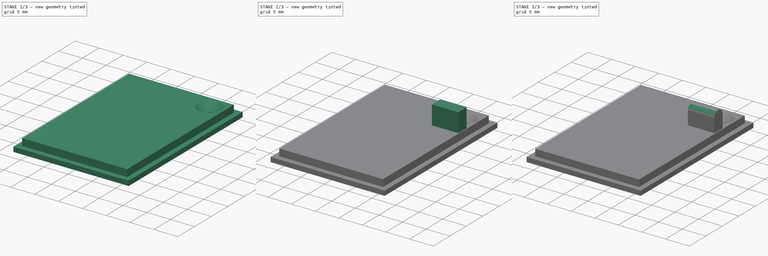
[diagram: build sequence overview — one tinted view per stage of 3, left to right]
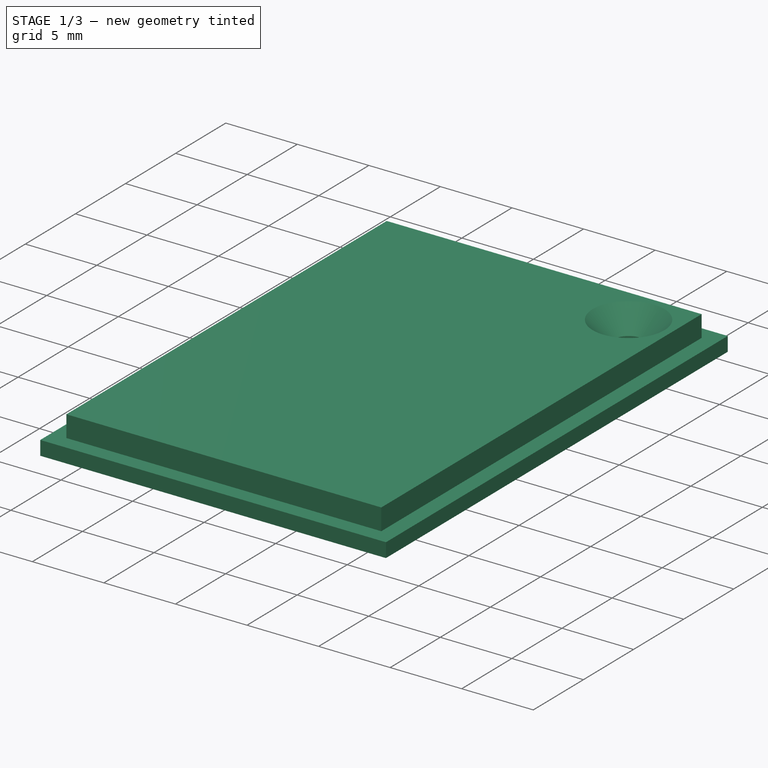
[diagram: stage 1 of 3 — iso view after this stage's code; geometry added in this stage tinted green]
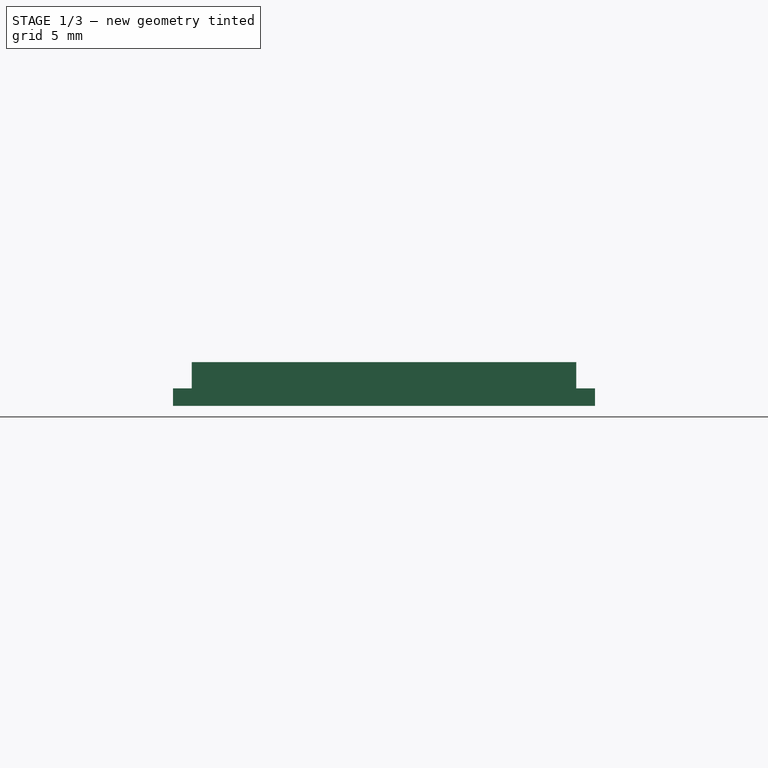
[diagram: stage 1 of 3 — front view after this stage's code; geometry added in this stage tinted green]
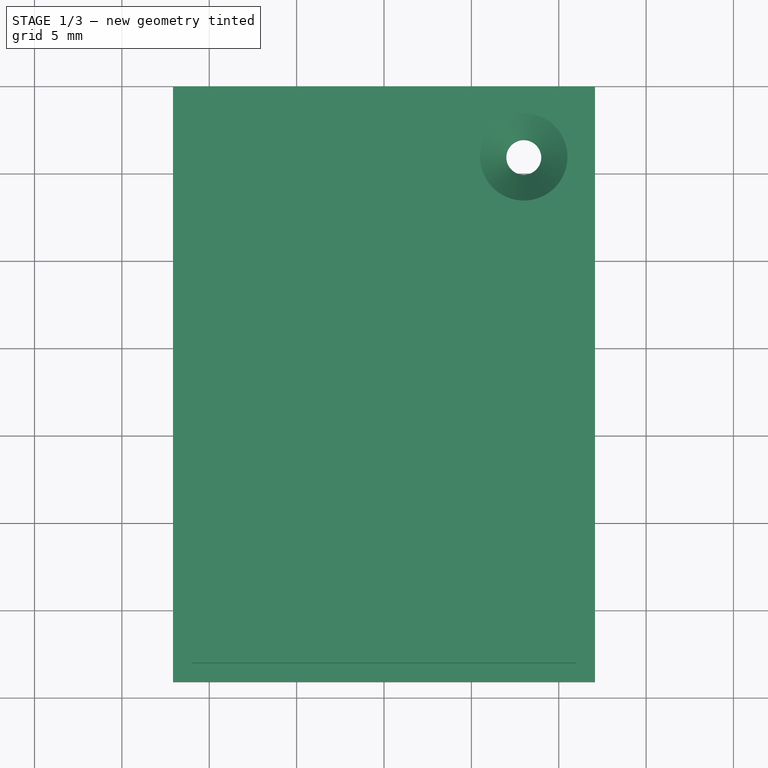
[diagram: stage 1 of 3 — top view after this stage's code; geometry added in this stage tinted green]
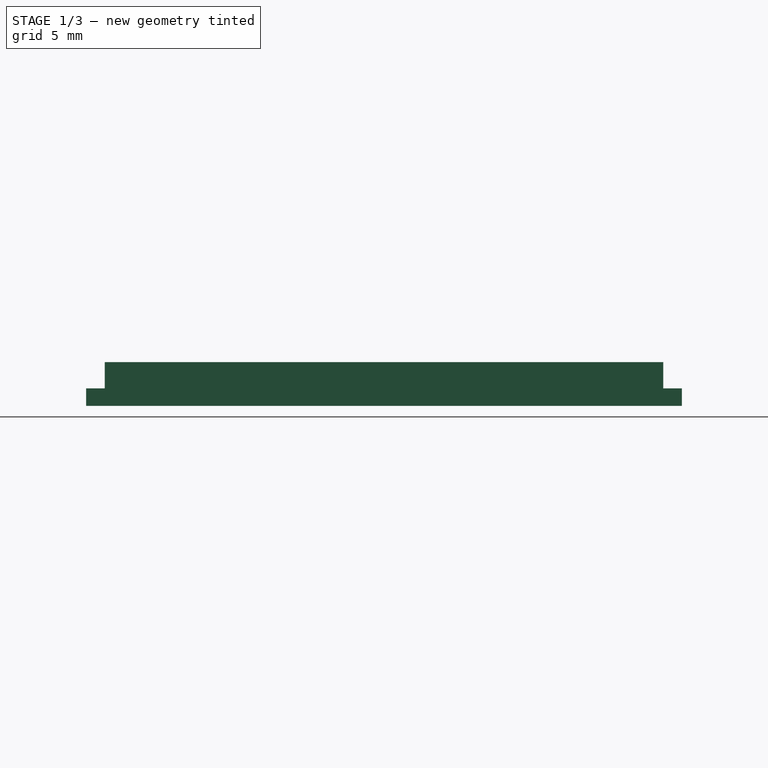
[diagram: stage 1 of 3 — right view after this stage's code; geometry added in this stage tinted green]
FCSTD DOCUMENT  (FreeCAD 0.18R16117 (Git))
Label: Couvercle switch etagere
License: All rights reserved
LicenseURL: http://en.wikipedia.org/wiki/All_rights_reserved
objects: Sketcher::SketchObject×4, PartDesign::Fillet×4, PartDesign::Pad×2, PartDesign::Pocket×1, PartDesign::Hole×1, PartDesign::Body×1
note: 17 computed .brp shape members not serialized (recipe doc carries the construction recipe); baked Part::Feature solids carry a one-line shape summary decoded from their .brp

FEATURE [Sketcher::SketchObject] Sketch
  MapMode = 5
  Placement = pos=(0,0,0) rot=(1,0,0;1.5708rad)
  Support = -> [XZ_Plane]
  sketch-geometry (8):
    g0: LineSegment StartX=-12.075 StartY=0 StartZ=0 EndX=12.075 EndY=0 EndZ=0
    g1: LineSegment StartX=12.075 StartY=0 StartZ=0 EndX=12.075 EndY=1 EndZ=0
    g2: LineSegment StartX=12.075 StartY=1 StartZ=0 EndX=11 EndY=1 EndZ=0
    g3: LineSegment StartX=11 StartY=1 StartZ=0 EndX=11 EndY=2.5 EndZ=0
    g4: LineSegment StartX=11 StartY=2.5 StartZ=0 EndX=-11 EndY=2.5 EndZ=0
    g5: LineSegment StartX=-11 StartY=2.5 StartZ=0 EndX=-11 EndY=1 EndZ=0
    g6: LineSegment StartX=-11 StartY=1 StartZ=0 EndX=-12.075 EndY=1 EndZ=0
    g7: LineSegment StartX=-12.075 StartY=1 StartZ=0 EndX=-12.075 EndY=0 EndZ=0
  constraints (24):
    c: Coincident(g0,g1)
    c: Coincident(g1,g2)
    c: Coincident(g2,g3)
    c: Coincident(g3,g4)
    c: Coincident(g4,g5)
    c: Coincident(g5,g6)
    c: Coincident(g6,g7)
    c: Coincident(g7,g0)
    c: Horizontal(g0)
    c: Horizontal(g4)
    c: Vertical(g5)
    c: Vertical(g3)
    c: Vertical(g7)
    c: Vertical(g1)
    c: Horizontal(g6)
    c: Horizontal(g2)
    c: DistanceX(g4,g4) = 22
    c: DistanceX(g0,g0) = 24.15
    c: Equal(g6,g2)
    c: DistanceY(g1,g1) = 1
    c: Horizontal(g5,g2)
    c: DistanceY(g5,g5) = 1.5
    c: DistanceX(g0,g-1) = 12.075
    c: PointOnObject(g0,g-1)
FEATURE [PartDesign::Pad] Pad
  Length = 34.1
  Length2 = 100
  Placement = pos=(0,0,0) rot=(1,0,0;1.5708rad)
  Profile = -> Sketch
  Type = 0
FEATURE [Sketcher::SketchObject] Sketch001
  ExternalGeometry = -> [Pad]
  MapMode = 5
  Placement = pos=(0,1.7e-15,2.5) rot=(0,0,1;3.14159rad)
  Support = -> [Pad]
  sketch-geometry (8):
    g0: LineSegment StartX=-11 StartY=33.03 StartZ=0 EndX=11 EndY=33.03 EndZ=0
    g1: LineSegment StartX=11 StartY=33.03 StartZ=0 EndX=11 EndY=34.1 EndZ=0
    g2: LineSegment StartX=11 StartY=34.1 StartZ=0 EndX=-11 EndY=34.1 EndZ=0
    g3: LineSegment StartX=-11 StartY=34.1 StartZ=0 EndX=-11 EndY=33.03 EndZ=0
    g4: LineSegment StartX=-11 StartY=0 StartZ=0 EndX=11 EndY=0 EndZ=0
    g5: LineSegment StartX=11 StartY=0 StartZ=0 EndX=11 EndY=1.07 EndZ=0
    g6: LineSegment StartX=11 StartY=1.07 StartZ=0 EndX=-11 EndY=1.07 EndZ=0
    g7: LineSegment StartX=-11 StartY=1.07 StartZ=0 EndX=-11 EndY=0 EndZ=0
  constraints (20):
    c: Coincident(g0,g1)
    c: Coincident(g1,g2)
    c: Coincident(g2,g3)
    c: Coincident(g3,g0)
    c: Horizontal(g0)
    c: Vertical(g1)
    c: Vertical(g3)
    c: Coincident(g4,g5)
    c: Coincident(g5,g6)
    c: Coincident(g6,g7)
    c: Coincident(g7,g4)
    c: Horizontal(g6)
    c: Vertical(g5)
    c: Vertical(g7)
    c: Coincident(g2,g-5)
    c: Coincident(g1,g-4)
    c: Coincident(g4,g-3)
    c: Coincident(g4,g-5)
    c: DistanceY(g7,g7) = 1.07
    c: Equal(g1,g5)
FEATURE [PartDesign::Pocket] Pocket
  BaseFeature = -> Pad
  Length = 1.5
  Length2 = 100
  Placement = pos=(0,0,0) rot=(1,0,0;1.5708rad)
  Profile = -> Sketch001
  Type = 0
FEATURE [Sketcher::SketchObject] Sketch002
  ExternalGeometry = -> [Pocket]
  MapMode = 5
  Placement = pos=(0,2.8e-15,2.5) rot=(0,0,1;3.14159rad)
  Support = -> [Pocket]
  sketch-geometry (1):
    g0: Circle CenterX=-8 CenterY=4.07 CenterZ=0 NormalX=0 NormalY=0 NormalZ=1 AngleXU=0 Radius=0.7
  constraints (3):
    c: Radius(g0) = 0.7
    c: DistanceY(g-4,g0) = 3
    c: DistanceX(g-4,g0) = 3
FEATURE [PartDesign::Hole] Hole
  BaseFeature = -> Pocket
  Depth = 25
  DepthType = 0
  Diameter = 2
  DrillPoint = 1
  DrillPointAngle = 118
  HoleCutCountersinkAngle = 90
  HoleCutDepth = 0
  HoleCutDiameter = 5
  HoleCutType = 2
  ModelActualThread = false
  Placement = pos=(0,0,0) rot=(1,0,0;1.5708rad)
  Profile = -> Sketch002
  Tapered = false
  TaperedAngle = 96
  ThreadAngle = 0
  ThreadClass = 0
  ThreadCutOffInner = 0
  ThreadCutOffOuter = 0
  ThreadDirection = 0
  ThreadFit = 0
  ThreadPitch = 0
  ThreadSize = 0
  ThreadType = 0
  Threaded = false
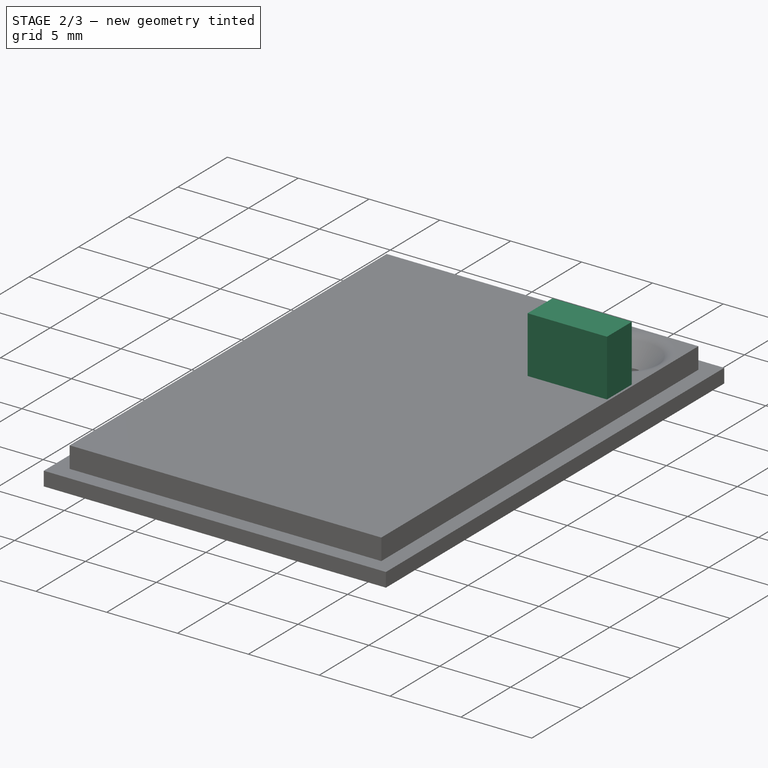
[diagram: stage 2 of 3 — iso view after this stage's code; geometry added in this stage tinted green]
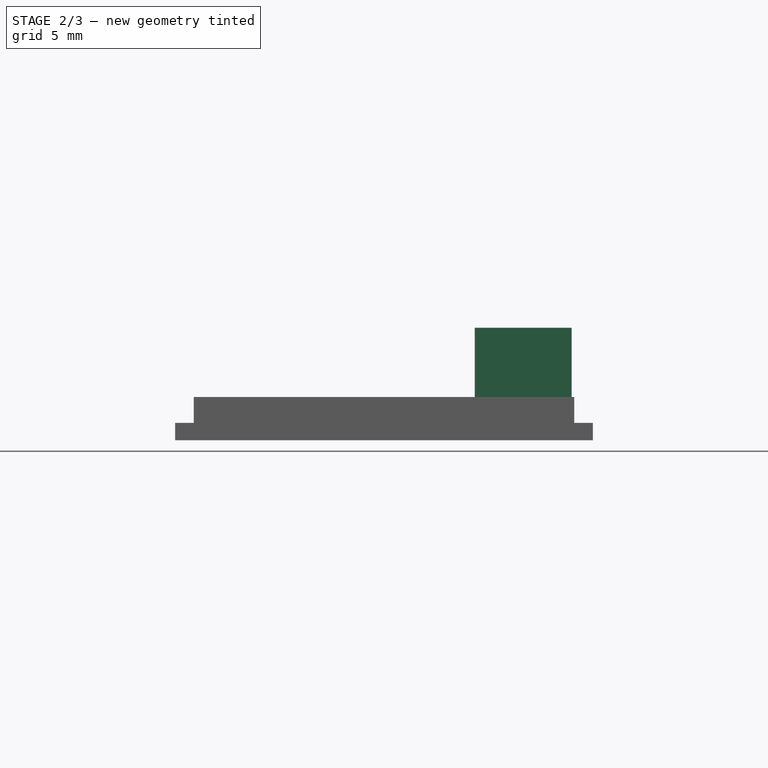
[diagram: stage 2 of 3 — front view after this stage's code; geometry added in this stage tinted green]
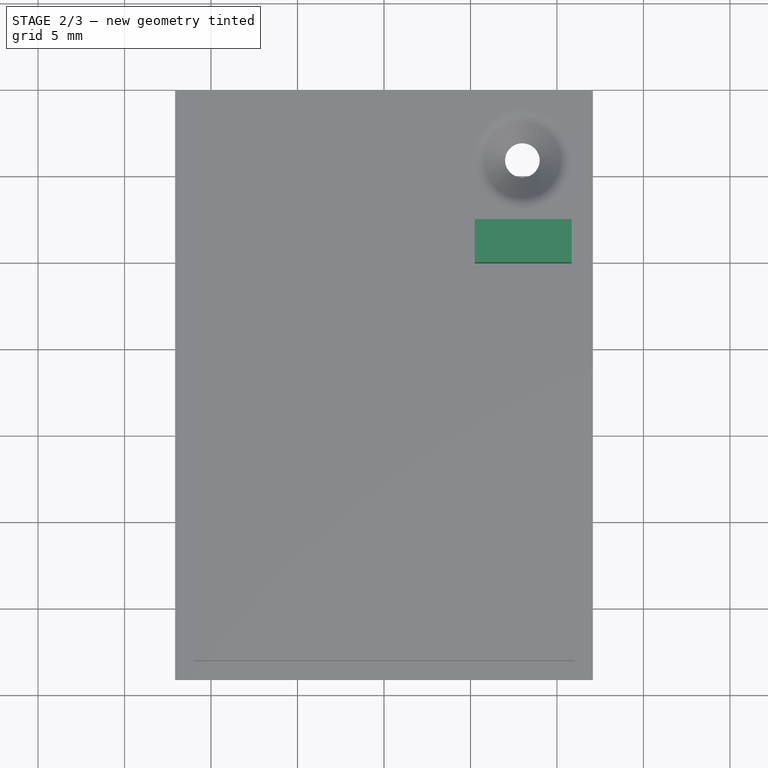
[diagram: stage 2 of 3 — top view after this stage's code; geometry added in this stage tinted green]
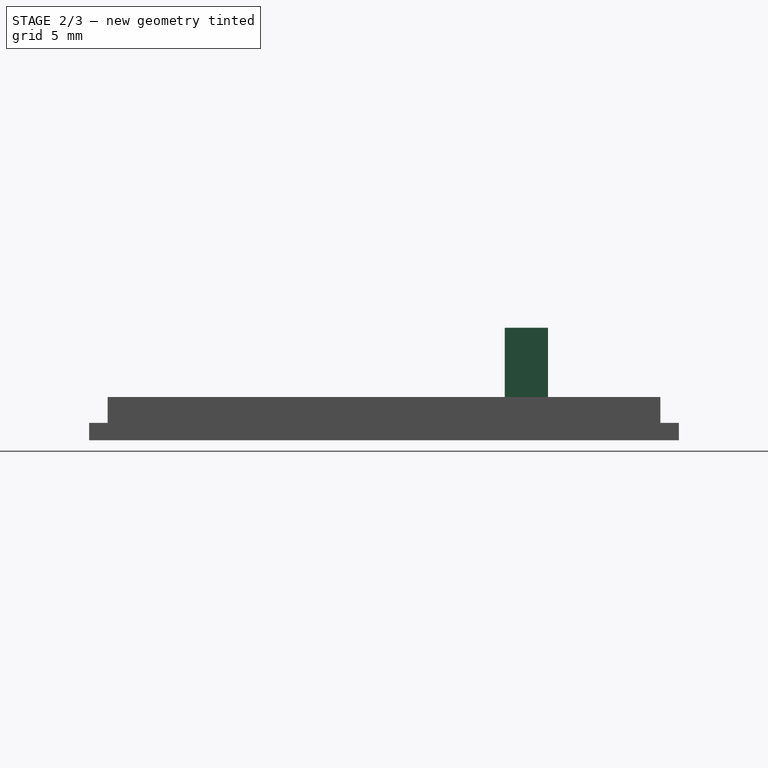
[diagram: stage 2 of 3 — right view after this stage's code; geometry added in this stage tinted green]
FEATURE [PartDesign::Fillet] Fillet
  Base = -> Hole [Edge28]
  BaseFeature = -> Hole
  Placement = pos=(0,0,0) rot=(1,0,0;1.5708rad)
  Radius = 1
FEATURE [Sketcher::SketchObject] Sketch003
  ExternalGeometry = -> [Fillet]
  MapMode = 5
  Placement = pos=(0,3.9e-15,2.5) rot=(0,0,1;3.14159rad)
  Support = -> [Fillet]
  sketch-geometry (4):
    g0: LineSegment StartX=-10.85 StartY=7.57 StartZ=0 EndX=-5.25 EndY=7.57 EndZ=0
    g1: LineSegment StartX=-5.25 StartY=7.57 StartZ=0 EndX=-5.25 EndY=10.07 EndZ=0
    g2: LineSegment StartX=-5.25 StartY=10.07 StartZ=0 EndX=-10.85 EndY=10.07 EndZ=0
    g3: LineSegment StartX=-10.85 StartY=10.07 StartZ=0 EndX=-10.85 EndY=7.57 EndZ=0
  constraints (12):
    c: Coincident(g0,g1)
    c: Coincident(g1,g2)
    c: Coincident(g2,g3)
    c: Coincident(g3,g0)
    c: Horizontal(g0)
    c: Horizontal(g2)
    c: Vertical(g1)
    c: Vertical(g3)
    c: DistanceY(g-4,g0) = 6.5
    c: DistanceY(g1,g1) = 2.5
    c: DistanceX(g2,g2) = 5.6
    c: DistanceX(g0,g-4) = -0.15
FEATURE [PartDesign::Pad] Pad001
  BaseFeature = -> Fillet
  Length = 4
  Length2 = 100
  Placement = pos=(0,0,0) rot=(1,0,0;1.5708rad)
  Profile = -> Sketch003
  Type = 0
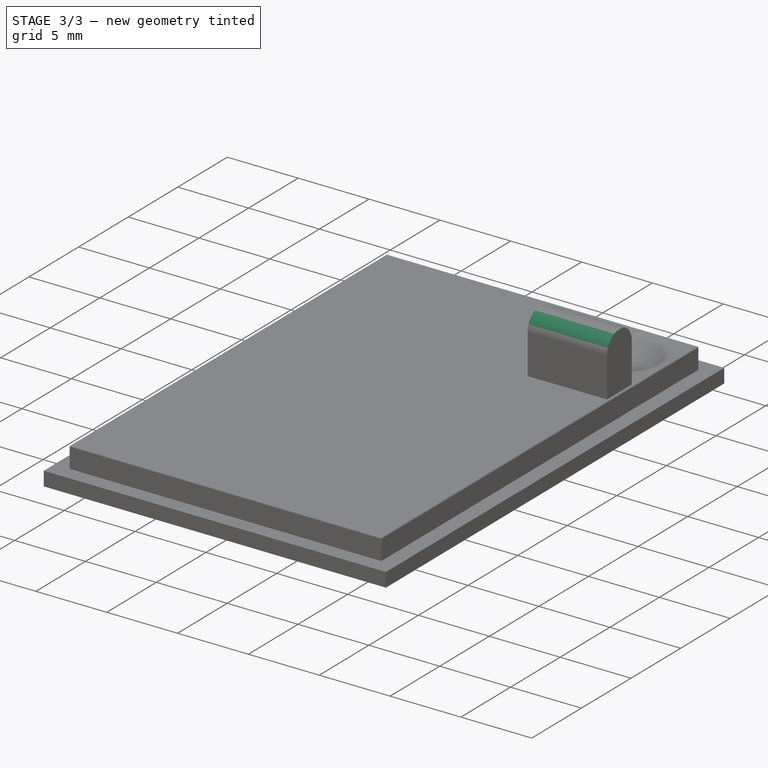
[diagram: stage 3 of 3 — iso view after this stage's code; geometry added in this stage tinted green]
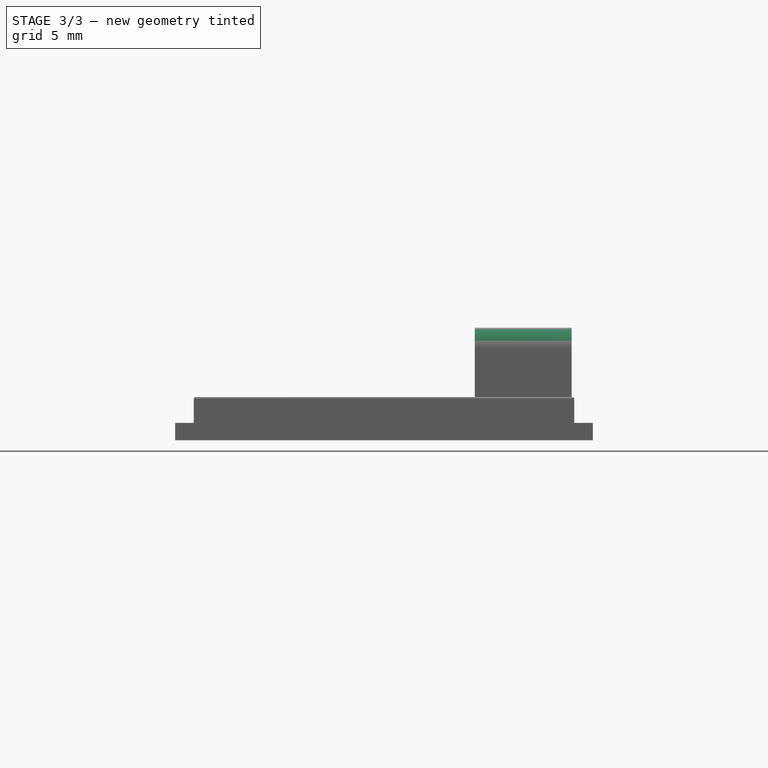
[diagram: stage 3 of 3 — front view after this stage's code; geometry added in this stage tinted green]
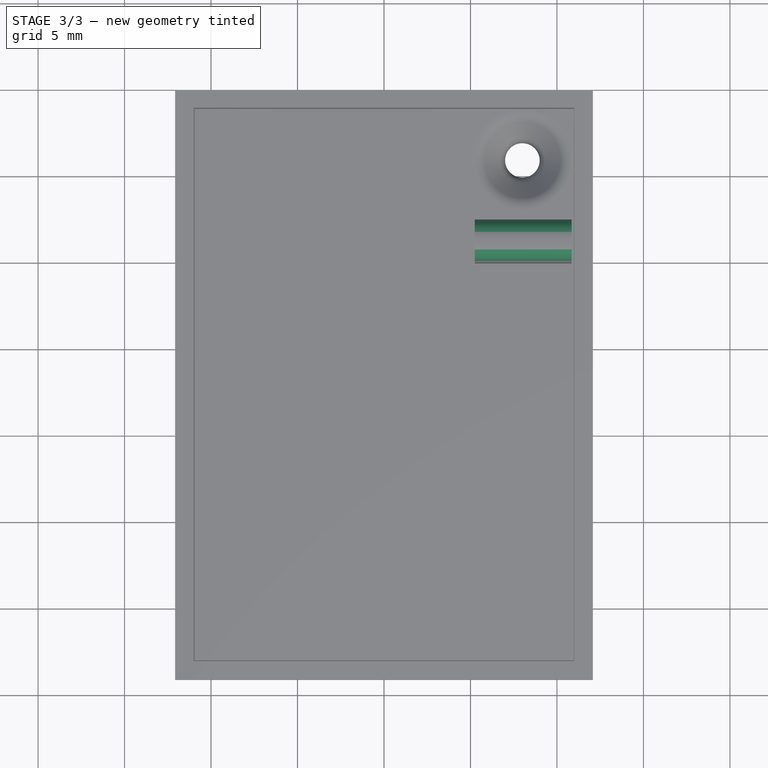
[diagram: stage 3 of 3 — top view after this stage's code; geometry added in this stage tinted green]
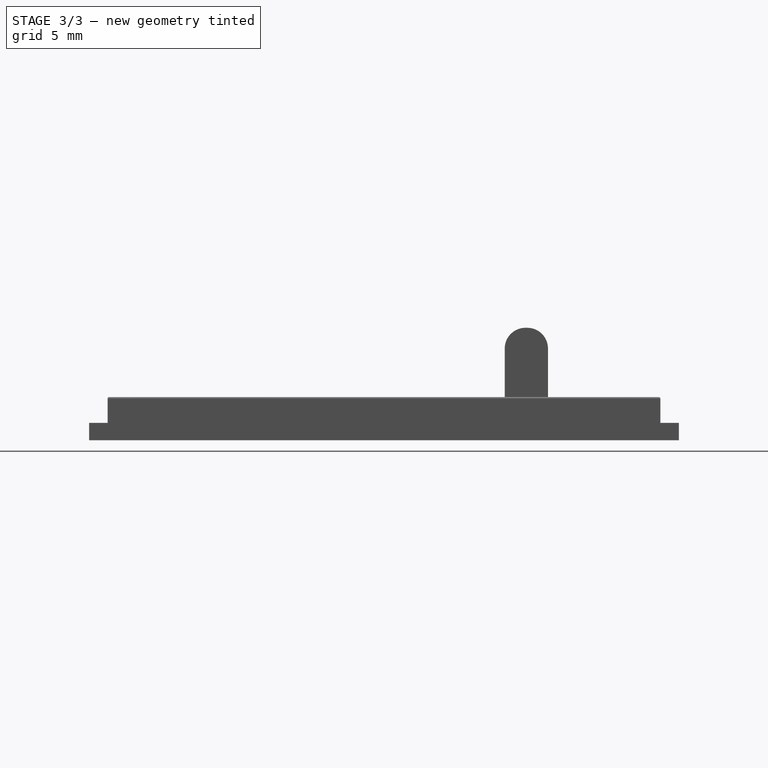
[diagram: stage 3 of 3 — right view after this stage's code; geometry added in this stage tinted green]
FEATURE [PartDesign::Fillet] Fillet001
  Base = -> Pad001 [Edge35,Edge32]
  BaseFeature = -> Pad001
  Placement = pos=(0,0,0) rot=(1,0,0;1.5708rad)
  Radius = 1.2
FEATURE [PartDesign::Fillet] Fillet002
  Base = -> Fillet001 [Edge14,Edge15,Edge13,Edge12]
  BaseFeature = -> Fillet001
  Placement = pos=(0,0,0) rot=(1,0,0;1.5708rad)
  Radius = 0.1
FEATURE [PartDesign::Fillet] Fillet003
  Base = -> Fillet002 [Edge18]
  BaseFeature = -> Fillet002
  Placement = pos=(0,0,0) rot=(1,0,0;1.5708rad)
  Radius = 1
FEATURE [PartDesign::Body] Body
  Group = -> [Sketch,Pad,Sketch001,Pocket,Sketch002,Hole,Fillet,Sketch003,Pad001,Fillet001,Fillet002,Fillet003]
  Origin = -> Origin
  Tip = -> Fillet003
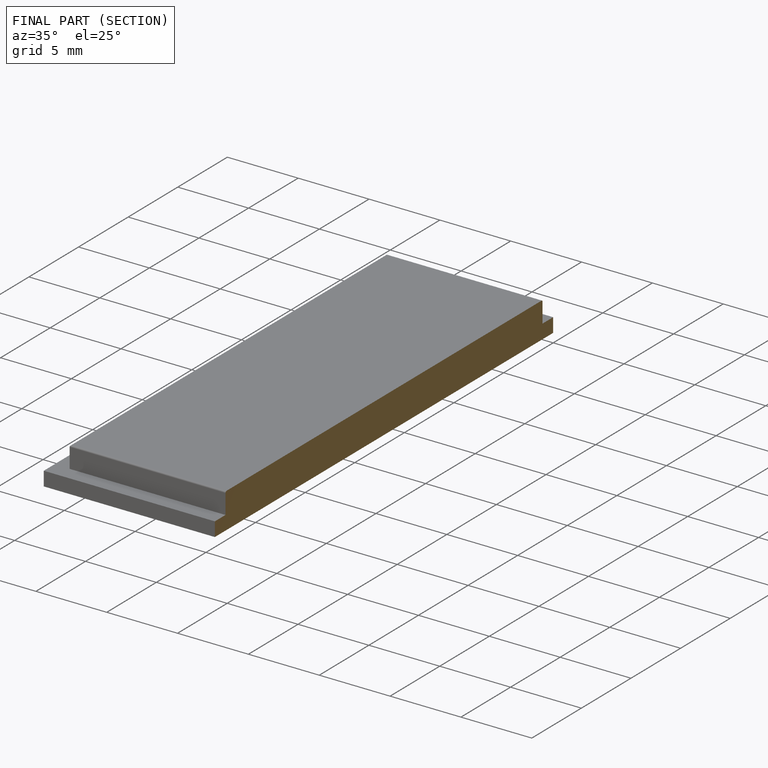
[diagram: finished part — half-section view (interior)]
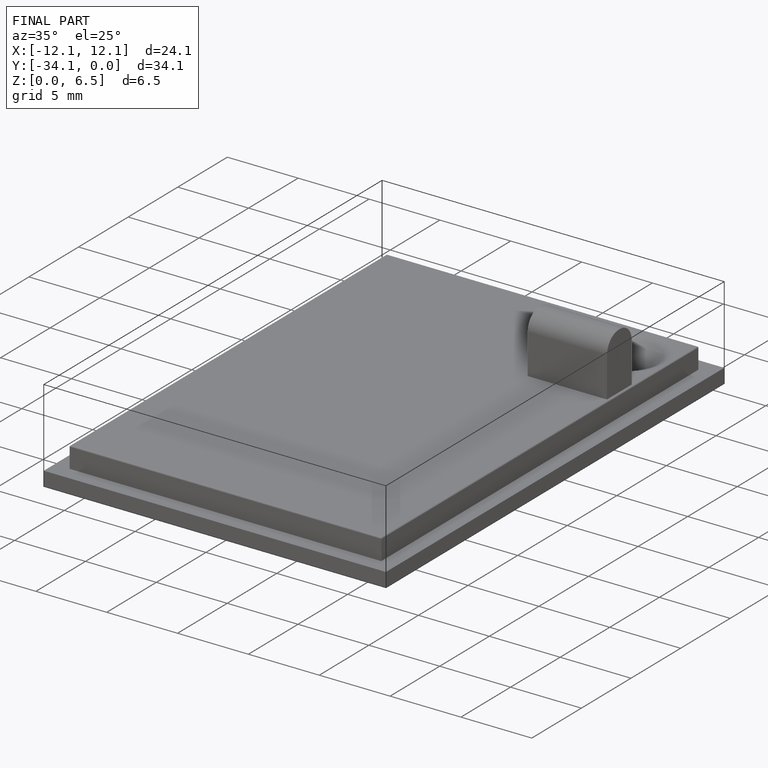
[diagram: finished part — iso view with bounding-box wireframe]
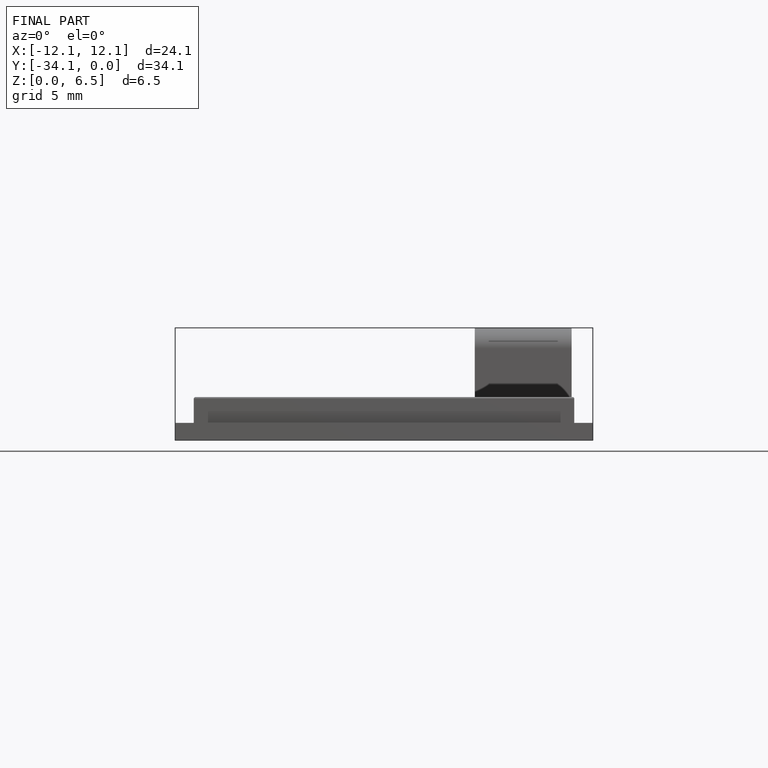
[diagram: finished part — front view with bounding-box wireframe]
